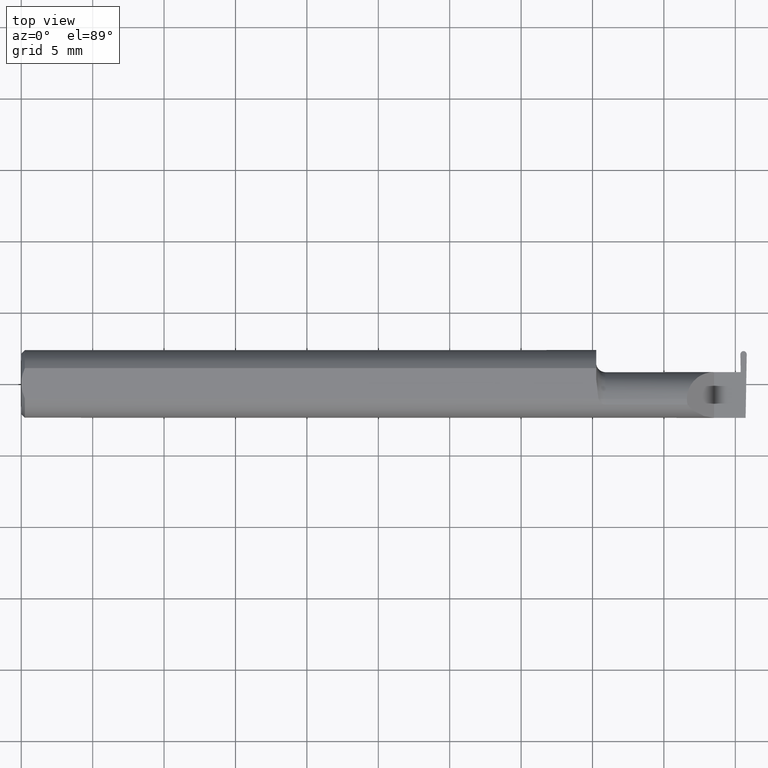
[diagram: clean part render]
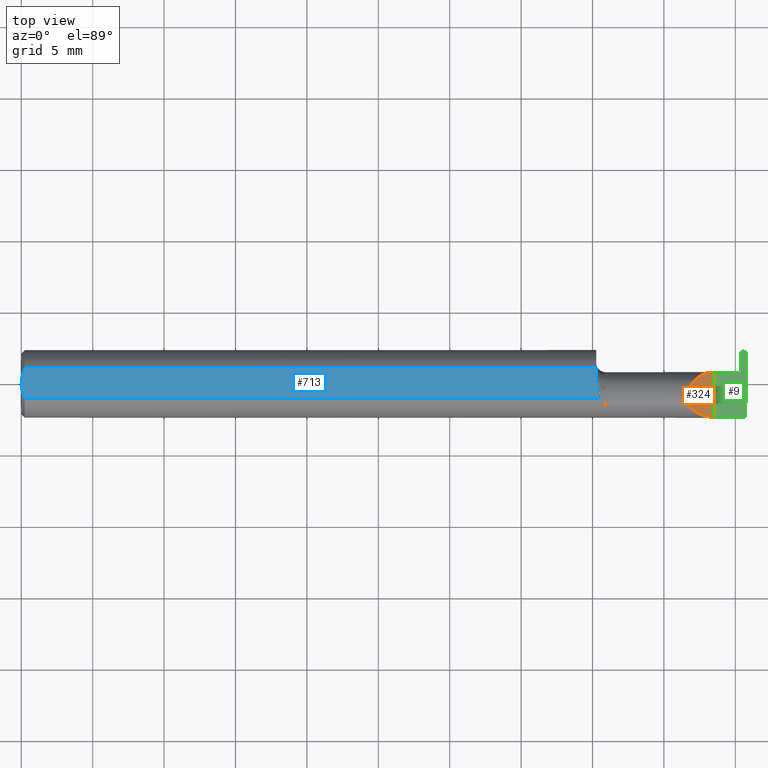
[diagram: same view with three faces highlighted in distinct colors, each labeled with its STEP entity id]
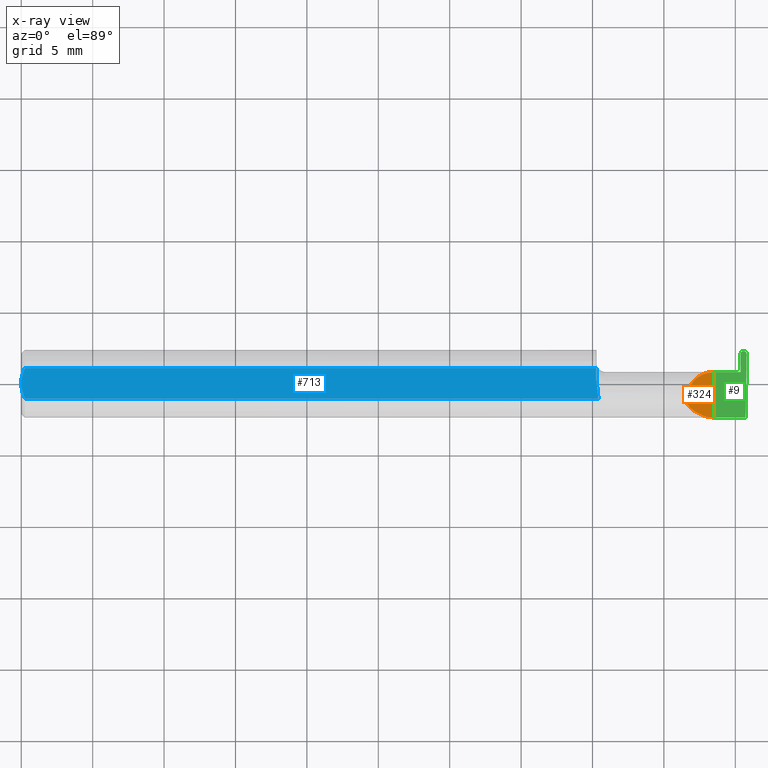
[diagram: x-ray of the same camera — body ghosted, the three highlighted faces saturated]
A machine part, top view with three faces highlighted in distinct colors.
The next image is the same camera in x-ray (body ghosted, the three faces saturated) — at least one of them is partly hidden behind the body in this view.
Their STEP definitions:

[orange] entity #324 — the highlighted planar face has unit normal (-0.7071, 0, -0.7071).
#6 = CARTESIAN_POINT ( 'NONE',  ( 1.910000000000000142, 0.03239999999999999131, 5.082284216461538453E-17 ) ) ;
#21 = CARTESIAN_POINT ( 'NONE',  ( 1.836620632051321200, -0.05810704225352102820, 0.07337936794867834511 ) ) ;
#28 = PLANE ( 'NONE',  #156 ) ;
#57 = CARTESIAN_POINT ( 'NONE',  ( 1.834999999999999298, 0.001333982822017845335, 0.07500000000000003886 ) ) ;
#63 =( BOUNDED_CURVE ( )  B_SPLINE_CURVE ( 3, ( #378, #57, #315, #384 ),
 .UNSPECIFIED., .F., .F. ) 
 B_SPLINE_CURVE_WITH_KNOTS ( ( 4, 4 ),
 ( 0.000000000000000000, 1.570796326794896336 ),
 .UNSPECIFIED. ) 
 CURVE ( )  GEOMETRIC_REPRESENTATION_ITEM ( )  RATIONAL_B_SPLINE_CURVE ( ( 1.000000000000000000, 0.8047378541243650485, 0.8047378541243650485, 1.000000000000000000 ) ) 
 REPRESENTATION_ITEM ( '' )  );
#76 = DIRECTION ( 'NONE',  ( -0.7071067811865442421, 0.000000000000000000, -0.7071067811865509034 ) ) ;
#95 =( BOUNDED_CURVE ( )  B_SPLINE_CURVE ( 3, ( #462, #708, #646, #21 ),
 .UNSPECIFIED., .F., .F. ) 
 B_SPLINE_CURVE_WITH_KNOTS ( ( 4, 4 ),
 ( 4.712388980384689674, 5.613420356061720184 ),
 .UNSPECIFIED. ) 
 CURVE ( )  GEOMETRIC_REPRESENTATION_ITEM ( )  RATIONAL_B_SPLINE_CURVE ( ( 1.000000000000000000, 0.9334817841311873199, 0.9334817841311873199, 1.000000000000000000 ) ) 
 REPRESENTATION_ITEM ( '' )  );
#137 = ORIENTED_EDGE ( 'NONE', *, *, #631, .F. ) ;
#150 = DIRECTION ( 'NONE',  ( -0.7071067811865507924, 0.000000000000000000, 0.7071067811865441310 ) ) ;
#156 = AXIS2_PLACEMENT_3D ( 'NONE', #533, #76, #150 ) ;
#179 = VERTEX_POINT ( 'NONE', #750 ) ;
#202 = CARTESIAN_POINT ( 'NONE',  ( 1.836620632051321200, -0.05810704225352102820, 0.07337936794867834511 ) ) ;
#220 = EDGE_CURVE ( 'NONE', #179, #651, #63, .T. ) ;
#239 = LINE ( 'NONE', #491, #423 ) ;
#241 = ORIENTED_EDGE ( 'NONE', *, *, #433, .F. ) ;
#315 = CARTESIAN_POINT ( 'NONE',  ( 1.866066017177981706, 0.03239999999999999131, 0.04393398282201791544 ) ) ;
#324 = ADVANCED_FACE ( 'NONE', ( #595 ), #28, .F. ) ;
#349 =( BOUNDED_CURVE ( )  B_SPLINE_CURVE ( 3, ( #202, #518, #759, #642 ),
 .UNSPECIFIED., .F., .T. ) 
 B_SPLINE_CURVE_WITH_KNOTS ( ( 4, 4 ),
 ( 6.074922494366330916, 6.283185307179586232 ),
 .UNSPECIFIED. ) 
 CURVE ( )  GEOMETRIC_REPRESENTATION_ITEM ( )  RATIONAL_B_SPLINE_CURVE ( ( 1.000000000000000000, 0.9963888149483995926, 0.9963888149483995926, 1.000000000000000000 ) ) 
 REPRESENTATION_ITEM ( '' )  );
#374 = CARTESIAN_POINT ( 'NONE',  ( 1.910000000000000142, -0.09360000000000005815, 1.102182119232621301E-17 ) ) ;
#378 = CARTESIAN_POINT ( 'NONE',  ( 1.834999999999999520, -0.04260000000000003367, 0.07500000000000003886 ) ) ;
#384 = CARTESIAN_POINT ( 'NONE',  ( 1.910000000000000142, 0.03239999999999999131, 5.082284216461538453E-17 ) ) ;
#385 = ORIENTED_EDGE ( 'NONE', *, *, #220, .F. ) ;
#423 = VECTOR ( 'NONE', #669, 39.37007874015748143 ) ;
#433 = EDGE_CURVE ( 'NONE', #660, #711, #95, .T. ) ;
#462 = CARTESIAN_POINT ( 'NONE',  ( 1.910000000000000142, -0.09360000000000005815, 1.102182119232621301E-17 ) ) ;
#477 = EDGE_CURVE ( 'NONE', #660, #651, #239, .T. ) ;
#491 = CARTESIAN_POINT ( 'NONE',  ( 1.910000000000000142, -0.2500000000000000555, 1.102182119232621301E-17 ) ) ;
#518 = CARTESIAN_POINT ( 'NONE',  ( 1.835542168554753717, -0.05300374992736060081, 0.07445783144524575903 ) ) ;
#533 = CARTESIAN_POINT ( 'NONE',  ( 1.910000000000000142, -0.2500000000000000555, 1.102182119232621301E-17 ) ) ;
#561 = EDGE_LOOP ( 'NONE', ( #137, #241, #675, #385 ) ) ;
#595 = FACE_OUTER_BOUND ( 'NONE', #561, .T. ) ;
#631 = EDGE_CURVE ( 'NONE', #711, #179, #349, .T. ) ;
#642 = CARTESIAN_POINT ( 'NONE',  ( 1.834999999999999520, -0.04260000000000003367, 0.07500000000000003886 ) ) ;
#646 = CARTESIAN_POINT ( 'NONE',  ( 1.854690286057536941, -0.08092595952420821026, 0.05530971394246249340 ) ) ;
#651 = VERTEX_POINT ( 'NONE', #6 ) ;
#660 = VERTEX_POINT ( 'NONE', #374 ) ;
#669 = DIRECTION ( 'NONE',  ( -0.000000000000000000, 1.000000000000000000, -0.000000000000000000 ) ) ;
#675 = ORIENTED_EDGE ( 'NONE', *, *, #477, .T. ) ;
#684 = CARTESIAN_POINT ( 'NONE',  ( 1.836620632051321200, -0.05810704225352102820, 0.07337936794867834511 ) ) ;
#708 = CARTESIAN_POINT ( 'NONE',  ( 1.880893035518782730, -0.09359999999999997489, 0.02910696448121682239 ) ) ;
#711 = VERTEX_POINT ( 'NONE', #684 ) ;
#750 = CARTESIAN_POINT ( 'NONE',  ( 1.834999999999999520, -0.04260000000000003367, 0.07500000000000003886 ) ) ;
#759 = CARTESIAN_POINT ( 'NONE',  ( 1.834999999999999520, -0.04781600192481531841, 0.07500000000000003886 ) ) ;

[blue] entity #713 — the highlighted planar face has unit normal (0, 0, 1).
#17 = ORIENTED_EDGE ( 'NONE', *, *, #412, .F. ) ;
#25 = EDGE_CURVE ( 'NONE', #123, #194, #84, .T. ) ;
#69 = CARTESIAN_POINT ( 'NONE',  ( 2.191425808082400728, 0.09360000000000005815, 0.08359999999999991049 ) ) ;
#84 = LINE ( 'NONE', #341, #366 ) ;
#93 = B_SPLINE_CURVE_WITH_KNOTS ( 'NONE', 3,
 ( #640, #271, #146, #397, #710, #643 ),
 .UNSPECIFIED., .F., .F.,
 ( 4, 2, 4 ),
 ( 0.001744210492668864416, 0.002295110172257193264, 0.002846009851845522111 ),
 .UNSPECIFIED. ) ;
#96 = VERTEX_POINT ( 'NONE', #609 ) ;
#103 = DIRECTION ( 'NONE',  ( 1.000000000000000000, 0.000000000000000000, 0.000000000000000000 ) ) ;
#115 = ORIENTED_EDGE ( 'NONE', *, *, #703, .F. ) ;
#123 = VERTEX_POINT ( 'NONE', #481 ) ;
#129 = VECTOR ( 'NONE', #103, 39.37007874015748143 ) ;
#146 = CARTESIAN_POINT ( 'NONE',  ( 0.0009807498324118613890, 0.01453516766257752398, 0.08359999999999992437 ) ) ;
#181 = CARTESIAN_POINT ( 'NONE',  ( 1.585000000000000187, 0.003280657920457311257, 0.08359999999999991049 ) ) ;
#185 = CARTESIAN_POINT ( 'NONE',  ( 2.387527623501553705E-17, -0.01462709520273675068, 0.08359999999999991049 ) ) ;
#188 = ORIENTED_EDGE ( 'NONE', *, *, #538, .T. ) ;
#194 = VERTEX_POINT ( 'NONE', #328 ) ;
#265 = CARTESIAN_POINT ( 'NONE',  ( 0.01000000000000016674, -0.04209513035969864037, 0.08359999999999988274 ) ) ;
#271 = CARTESIAN_POINT ( 'NONE',  ( 2.476070721796526867E-17, 0.007317304829308955878, 0.08359999999999991049 ) ) ;
#278 = AXIS2_PLACEMENT_3D ( 'NONE', #69, #326, #575 ) ;
#287 = LINE ( 'NONE', #416, #535 ) ;
#297 = CARTESIAN_POINT ( 'NONE',  ( 1.591129652885479473, -0.04209513035970123551, 0.08359999999999991049 ) ) ;
#304 = CARTESIAN_POINT ( 'NONE',  ( 0.000000000000000000, 0.000000000000000000, 0.08359999999999991049 ) ) ;
#322 = ORIENTED_EDGE ( 'NONE', *, *, #548, .T. ) ;
#326 = DIRECTION ( 'NONE',  ( 0.000000000000000000, 0.000000000000000000, 1.000000000000000000 ) ) ;
#328 = CARTESIAN_POINT ( 'NONE',  ( 0.01000000000000016674, 0.04209513035969864037, 0.08359999999999988274 ) ) ;
#341 = CARTESIAN_POINT ( 'NONE',  ( 0.000000000000000000, 0.04209513035969864037, 0.08359999999999988274 ) ) ;
#366 = VECTOR ( 'NONE', #591, 39.37007874015748143 ) ;
#377 = FACE_OUTER_BOUND ( 'NONE', #706, .T. ) ;
#379 = ORIENTED_EDGE ( 'NONE', *, *, #25, .T. ) ;
#397 = CARTESIAN_POINT ( 'NONE',  ( 0.004492168231814808177, 0.02859366993844194779, 0.08359999999999991049 ) ) ;
#412 = EDGE_CURVE ( 'NONE', #506, #194, #93, .T. ) ;
#416 = CARTESIAN_POINT ( 'NONE',  ( 1.584999999999999964, 0.09360000000000005815, 0.08359999999999991049 ) ) ;
#419 = CARTESIAN_POINT ( 'NONE',  ( 1.591129652885479473, -0.04209513035970123551, 0.08359999999999991049 ) ) ;
#438 = CARTESIAN_POINT ( 'NONE',  ( 0.000000000000000000, 0.000000000000000000, 0.08359999999999991049 ) ) ;
#451 = VERTEX_POINT ( 'NONE', #297 ) ;
#476 = CARTESIAN_POINT ( 'NONE',  ( 1.584999999999999964, 0.01227294415283371881, 0.08359999999999991049 ) ) ;
#480 = CARTESIAN_POINT ( 'NONE',  ( 0.000000000000000000, -0.04209513035969864037, 0.08359999999999988274 ) ) ;
#481 = CARTESIAN_POINT ( 'NONE',  ( 1.584999999999999964, 0.04209513035969864037, 0.08359999999999988274 ) ) ;
#506 = VERTEX_POINT ( 'NONE', #304 ) ;
#526 = DIRECTION ( 'NONE',  ( 0.000000000000000000, 1.000000000000000000, 0.000000000000000000 ) ) ;
#531 = B_SPLINE_CURVE_WITH_KNOTS ( 'NONE', 3,
 ( #419, #731, #735, #782, #181, #476 ),
 .UNSPECIFIED., .F., .F.,
 ( 4, 2, 4 ),
 ( 0.009672910729349512918, 0.01035804079918428017, 0.01104317086901904915 ),
 .UNSPECIFIED. ) ;
#535 = VECTOR ( 'NONE', #526, 39.37007874015748143 ) ;
#538 = EDGE_CURVE ( 'NONE', #451, #569, #531, .T. ) ;
#548 = EDGE_CURVE ( 'NONE', #96, #451, #672, .T. ) ;
#569 = VERTEX_POINT ( 'NONE', #797 ) ;
#575 = DIRECTION ( 'NONE',  ( 1.000000000000000000, 0.000000000000000000, -0.000000000000000000 ) ) ;
#591 = DIRECTION ( 'NONE',  ( -1.000000000000000000, -0.000000000000000000, -0.000000000000000000 ) ) ;
#609 = CARTESIAN_POINT ( 'NONE',  ( 0.01000000000000016674, -0.04209513035969864037, 0.08359999999999988274 ) ) ;
#618 = ORIENTED_EDGE ( 'NONE', *, *, #800, .T. ) ;
#634 = PLANE ( 'NONE',  #278 ) ;
#640 = CARTESIAN_POINT ( 'NONE',  ( 0.000000000000000000, 0.000000000000000000, 0.08359999999999991049 ) ) ;
#643 = CARTESIAN_POINT ( 'NONE',  ( 0.01000000000000016674, 0.04209513035969864037, 0.08359999999999988274 ) ) ;
#645 = CARTESIAN_POINT ( 'NONE',  ( 0.004072204388638868758, -0.02891446873729324601, 0.08359999999999991049 ) ) ;
#672 = LINE ( 'NONE', #480, #129 ) ;
#703 = EDGE_CURVE ( 'NONE', #96, #506, #785, .T. ) ;
#706 = EDGE_LOOP ( 'NONE', ( #322, #188, #618, #379, #17, #115 ) ) ;
#710 = CARTESIAN_POINT ( 'NONE',  ( 0.007036739039485840133, 0.03550621559607060329, 0.08359999999999991049 ) ) ;
#713 = ADVANCED_FACE ( 'NONE', ( #377 ), #634, .T. ) ;
#731 = CARTESIAN_POINT ( 'NONE',  ( 1.591082007218903360, -0.03301619840524123994, 0.08359999999999991049 ) ) ;
#735 = CARTESIAN_POINT ( 'NONE',  ( 1.589570820222980352, -0.02392027542784324126, 0.08359999999999992437 ) ) ;
#782 = CARTESIAN_POINT ( 'NONE',  ( 1.586463898467976863, -0.005727447913487270295, 0.08359999999999991049 ) ) ;
#785 = B_SPLINE_CURVE_WITH_KNOTS ( 'NONE', 3,
 ( #265, #645, #185, #438 ),
 .UNSPECIFIED., .F., .F.,
 ( 4, 4 ),
 ( 0.0006429768761302093617, 0.001744210492668864416 ),
 .UNSPECIFIED. ) ;
#797 = CARTESIAN_POINT ( 'NONE',  ( 1.584999999999999964, 0.01227294415283371881, 0.08359999999999991049 ) ) ;
#800 = EDGE_CURVE ( 'NONE', #569, #123, #287, .T. ) ;

[green] entity #9 — the highlighted planar face has unit normal (-0, 0, -1).
#6 = CARTESIAN_POINT ( 'NONE',  ( 1.910000000000000142, 0.03239999999999999131, 5.082284216461538453E-17 ) ) ;
#9 = ADVANCED_FACE ( 'NONE', ( #272 ), #520, .F. ) ;
#31 = VECTOR ( 'NONE', #655, 39.37007874015748143 ) ;
#39 = VERTEX_POINT ( 'NONE', #723 ) ;
#58 = VERTEX_POINT ( 'NONE', #440 ) ;
#64 = EDGE_CURVE ( 'NONE', #110, #142, #184, .T. ) ;
#66 = ORIENTED_EDGE ( 'NONE', *, *, #190, .F. ) ;
#67 = DIRECTION ( 'NONE',  ( 1.000000000000000000, -0.000000000000000000, -0.000000000000000000 ) ) ;
#70 = EDGE_CURVE ( 'NONE', #58, #660, #364, .T. ) ;
#71 = DIRECTION ( 'NONE',  ( -0.01745240643727645827, -0.9998476951563912696, 0.000000000000000000 ) ) ;
#89 = LINE ( 'NONE', #392, #390 ) ;
#110 = VERTEX_POINT ( 'NONE', #540 ) ;
#132 = CARTESIAN_POINT ( 'NONE',  ( -3.937007874019685528E-05, 0.09039999999999999425, 0.000000000000000000 ) ) ;
#139 = CARTESIAN_POINT ( 'NONE',  ( 1.983339777177351770, 0.03239999999999999825, 0.000000000000000000 ) ) ;
#140 = EDGE_CURVE ( 'NONE', #110, #39, #191, .T. ) ;
#142 = VERTEX_POINT ( 'NONE', #746 ) ;
#184 =( BOUNDED_CURVE ( )  B_SPLINE_CURVE ( 3, ( #240, #235, #680, #613 ),
 .UNSPECIFIED., .F., .F. ) 
 B_SPLINE_CURVE_WITH_KNOTS ( ( 4, 4 ),
 ( 6.177091236413993158, 7.752341154236727760 ),
 .UNSPECIFIED. ) 
 CURVE ( )  GEOMETRIC_REPRESENTATION_ITEM ( )  RATIONAL_B_SPLINE_CURVE ( ( 1.000000000000000000, 0.8036869647627045143, 0.8036869647627045143, 1.000000000000000000 ) ) 
 REPRESENTATION_ITEM ( '' )  );
#186 = VECTOR ( 'NONE', #67, 39.37007874015748143 ) ;
#190 = EDGE_CURVE ( 'NONE', #651, #774, #443, .T. ) ;
#191 = LINE ( 'NONE', #132, #186 ) ;
#208 = VECTOR ( 'NONE', #515, 39.37007874015748143 ) ;
#235 = CARTESIAN_POINT ( 'NONE',  ( 1.985975431331754804, 0.09040000000000000813, -7.891494905330330497E-18 ) ) ;
#239 = LINE ( 'NONE', #491, #423 ) ;
#240 = CARTESIAN_POINT ( 'NONE',  ( 1.991123049092493602, 0.09039999999999999425, 0.000000000000000000 ) ) ;
#268 = ORIENTED_EDGE ( 'NONE', *, *, #343, .F. ) ;
#272 = FACE_OUTER_BOUND ( 'NONE', #803, .T. ) ;
#286 = EDGE_CURVE ( 'NONE', #430, #58, #450, .T. ) ;
#305 = CARTESIAN_POINT ( 'NONE',  ( 2.999519565323742037E-32, -0.09359999999999998876, 2.449293598294716768E-16 ) ) ;
#317 = AXIS2_PLACEMENT_3D ( 'NONE', #764, #770, #773 ) ;
#323 = CARTESIAN_POINT ( 'NONE',  ( 1.584999999999999964, 0.03239999999999999131, 5.082284216461538453E-17 ) ) ;
#327 = VECTOR ( 'NONE', #71, 39.37007874015748143 ) ;
#332 = CARTESIAN_POINT ( 'NONE',  ( 1.983339777177351770, 0.03239999999999999825, 0.000000000000000000 ) ) ;
#334 = EDGE_CURVE ( 'NONE', #395, #142, #89, .T. ) ;
#343 = EDGE_CURVE ( 'NONE', #774, #395, #413, .T. ) ;
#364 = LINE ( 'NONE', #305, #766 ) ;
#369 = EDGE_CURVE ( 'NONE', #430, #39, #460, .T. ) ;
#374 = CARTESIAN_POINT ( 'NONE',  ( 1.910000000000000142, -0.09360000000000005815, 1.102182119232621301E-17 ) ) ;
#390 = VECTOR ( 'NONE', #458, 39.37007874015748143 ) ;
#392 = CARTESIAN_POINT ( 'NONE',  ( 1.982482944067824659, 0.08148793596879662371, 0.000000000000000000 ) ) ;
#395 = VERTEX_POINT ( 'NONE', #139 ) ;
#398 = ORIENTED_EDGE ( 'NONE', *, *, #286, .F. ) ;
#406 = CARTESIAN_POINT ( 'NONE',  ( 2.000086514626878920, 0.08652078431768178701, -1.083994772031835482E-18 ) ) ;
#413 = LINE ( 'NONE', #332, #31 ) ;
#414 = ORIENTED_EDGE ( 'NONE', *, *, #70, .F. ) ;
#423 = VECTOR ( 'NONE', #669, 39.37007874015748143 ) ;
#430 = VERTEX_POINT ( 'NONE', #590 ) ;
#440 = CARTESIAN_POINT ( 'NONE',  ( 1.996942494641693600, -0.09360000000000001652, 0.000000000000000000 ) ) ;
#443 = LINE ( 'NONE', #323, #208 ) ;
#450 = LINE ( 'NONE', #748, #327 ) ;
#458 = DIRECTION ( 'NONE',  ( -0.01745240643727688848, 0.9998476951563912696, -0.000000000000000000 ) ) ;
#460 =( BOUNDED_CURVE ( )  B_SPLINE_CURVE ( 3, ( #776, #406, #519, #704 ),
 .UNSPECIFIED., .F., .T. ) 
 B_SPLINE_CURVE_WITH_KNOTS ( ( 4, 4 ),
 ( 1.672436806532646703, 3.247686724355353771 ),
 .UNSPECIFIED. ) 
 CURVE ( )  GEOMETRIC_REPRESENTATION_ITEM ( )  RATIONAL_B_SPLINE_CURVE ( ( 1.000000000000000000, 0.8036869647627110647, 0.8036869647627110647, 1.000000000000000000 ) ) 
 REPRESENTATION_ITEM ( '' )  );
#477 = EDGE_CURVE ( 'NONE', #660, #651, #239, .T. ) ;
#491 = CARTESIAN_POINT ( 'NONE',  ( 1.910000000000000142, -0.2500000000000000555, 1.102182119232621301E-17 ) ) ;
#492 = DIRECTION ( 'NONE',  ( -1.000000000000000000, -0.000000000000000000, -0.000000000000000000 ) ) ;
#515 = DIRECTION ( 'NONE',  ( 1.000000000000000000, 0.000000000000000000, 0.000000000000000000 ) ) ;
#519 = CARTESIAN_POINT ( 'NONE',  ( 1.996506178668245202, 0.09039999999999986935, -6.455300748705125713E-19 ) ) ;
#520 = PLANE ( 'NONE',  #317 ) ;
#529 = CARTESIAN_POINT ( 'NONE',  ( 1.977327383411515482, 0.03239999999999999825, 0.000000000000000000 ) ) ;
#540 = CARTESIAN_POINT ( 'NONE',  ( 1.991123049092493602, 0.09039999999999999425, 0.000000000000000000 ) ) ;
#590 = CARTESIAN_POINT ( 'NONE',  ( 1.999990968925781987, 0.08104697476785363564, 0.000000000000000000 ) ) ;
#613 = CARTESIAN_POINT ( 'NONE',  ( 1.982490641074217796, 0.08104697476785366339, 0.000000000000000000 ) ) ;
#624 = ORIENTED_EDGE ( 'NONE', *, *, #369, .T. ) ;
#647 = ORIENTED_EDGE ( 'NONE', *, *, #140, .F. ) ;
#651 = VERTEX_POINT ( 'NONE', #6 ) ;
#655 = DIRECTION ( 'NONE',  ( 1.000000000000000000, -0.000000000000000000, -0.000000000000000000 ) ) ;
#660 = VERTEX_POINT ( 'NONE', #374 ) ;
#664 = ORIENTED_EDGE ( 'NONE', *, *, #64, .T. ) ;
#669 = DIRECTION ( 'NONE',  ( -0.000000000000000000, 1.000000000000000000, -0.000000000000000000 ) ) ;
#680 = CARTESIAN_POINT ( 'NONE',  ( 1.982395095373120641, 0.08652078431768195355, -7.453030208168987846E-18 ) ) ;
#704 = CARTESIAN_POINT ( 'NONE',  ( 1.991358560907505959, 0.09039999999999999425, 0.000000000000000000 ) ) ;
#723 = CARTESIAN_POINT ( 'NONE',  ( 1.991358560907505959, 0.09039999999999999425, 0.000000000000000000 ) ) ;
#724 = ORIENTED_EDGE ( 'NONE', *, *, #477, .F. ) ;
#746 = CARTESIAN_POINT ( 'NONE',  ( 1.982490641074217796, 0.08104697476785366339, 0.000000000000000000 ) ) ;
#748 = CARTESIAN_POINT ( 'NONE',  ( 1.999998665932175124, 0.08148793596879662371, 0.000000000000000000 ) ) ;
#764 = CARTESIAN_POINT ( 'NONE',  ( 2.000000000000000000, -0.2500000000000000555, 0.000000000000000000 ) ) ;
#766 = VECTOR ( 'NONE', #492, 39.37007874015748143 ) ;
#770 = DIRECTION ( 'NONE',  ( -1.224646799147358877E-16, 0.000000000000000000, -1.000000000000000000 ) ) ;
#773 = DIRECTION ( 'NONE',  ( -1.000000000000000000, 0.000000000000000000, 1.224646799147358877E-16 ) ) ;
#774 = VERTEX_POINT ( 'NONE', #529 ) ;
#776 = CARTESIAN_POINT ( 'NONE',  ( 1.999990968925781987, 0.08104697476785363564, 0.000000000000000000 ) ) ;
#780 = ORIENTED_EDGE ( 'NONE', *, *, #334, .F. ) ;
#803 = EDGE_LOOP ( 'NONE', ( #647, #664, #780, #268, #66, #724, #414, #398, #624 ) ) ;